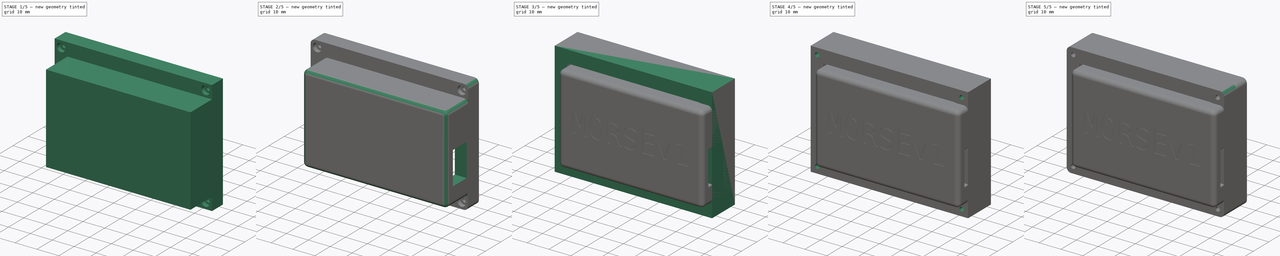
[diagram: build sequence overview — one tinted view per stage of 5, left to right]
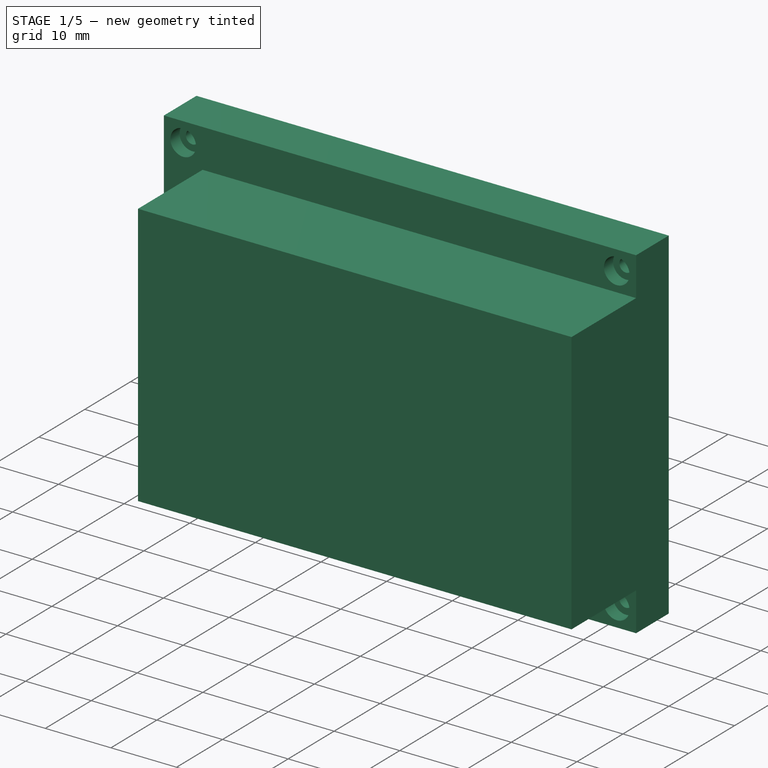
[diagram: stage 1 of 5 — iso view after this stage's code; geometry added in this stage tinted green]
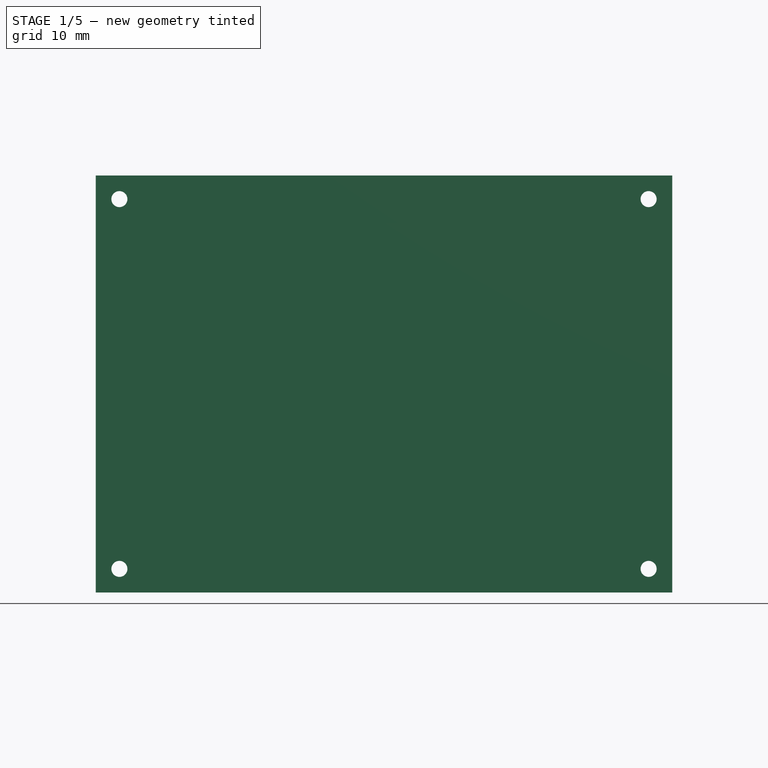
[diagram: stage 1 of 5 — front view after this stage's code; geometry added in this stage tinted green]
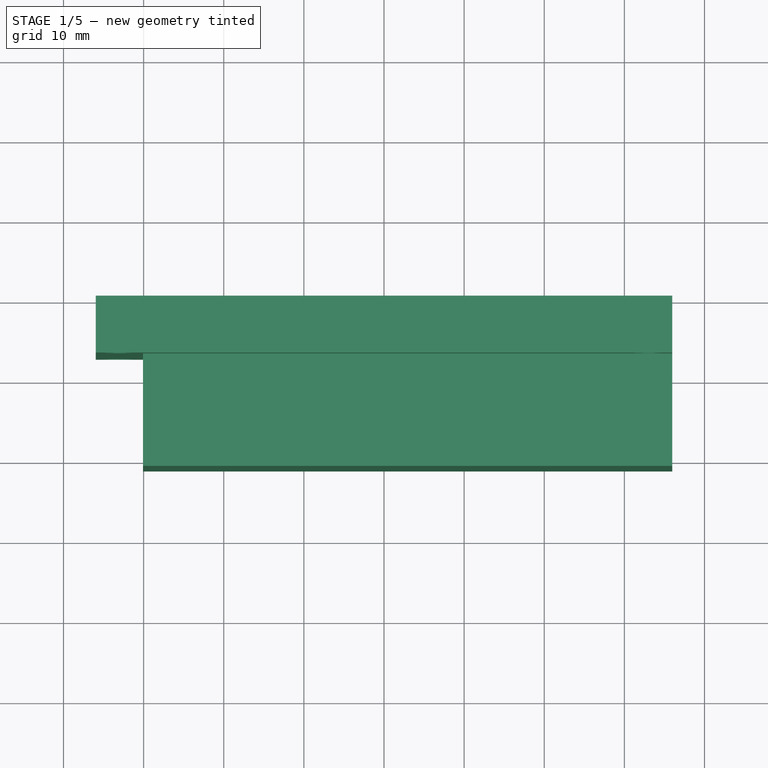
[diagram: stage 1 of 5 — top view after this stage's code; geometry added in this stage tinted green]
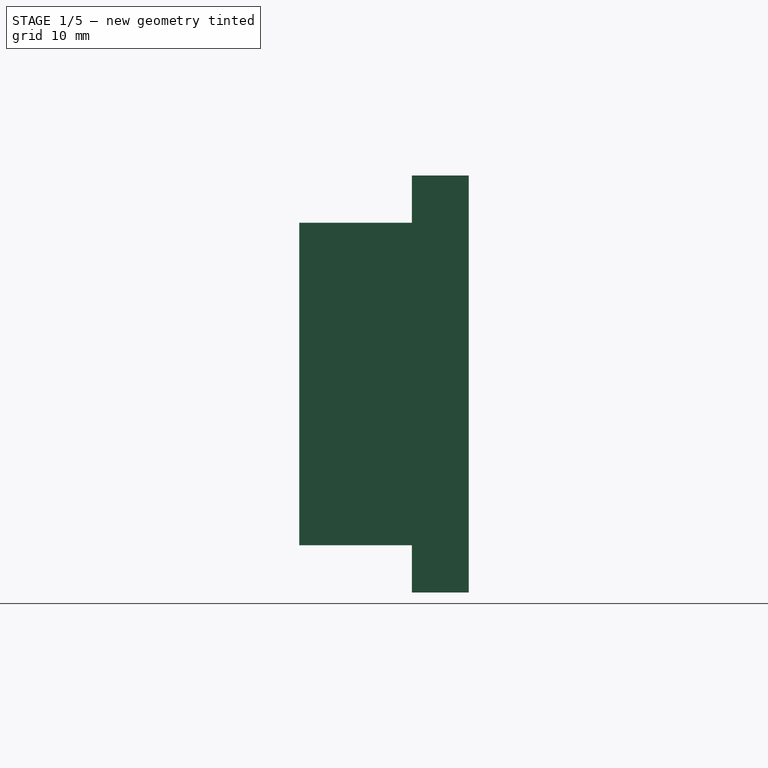
[diagram: stage 1 of 5 — right view after this stage's code; geometry added in this stage tinted green]
FCSTD DOCUMENT  (FreeCAD 0.19R24276 (Git))
Label: case
License: All rights reserved
LicenseURL: http://en.wikipedia.org/wiki/All_rights_reserved
objects: Sketcher::SketchObject×16, PartDesign::Pocket×15, PartDesign::Fillet×5, PartDesign::Pad×2, PartDesign::Body×2, Spreadsheet::Sheet×1, Part::Part2DObjectPython×1
note: 63 computed .brp shape members not serialized (recipe doc carries the construction recipe); baked Part::Feature solids carry a one-line shape summary decoded from their .brp

FEATURE [PartDesign::Body] Body001  label="Top"
  Group = -> [Sketch011,Pad001,Sketch012,Pocket009,Sketch013,Pocket010,Sketch014,Pocket,Sketch,Pocket011,Sketch015,Pocket012,Sketch016,Pocket013,Sketch017,Pocket014,Fillet,Fillet001,Fillet002]
  Origin = -> Origin001
  Placement = pos=(0,14.9,0) rot=(0,0,1;0rad)
  Tip = -> Fillet002
  expr: .Placement.Base.y = Spreadsheet.caseFullHeight
FEATURE [Sketcher::SketchObject] Sketch018
  FullyConstrained = true
  MapMode = 5
  Placement = pos=(0,0,0) rot=(1,0,0;1.5708rad)
  Support = -> [XZ_Plane]
  expr: Constraints[9] = Spreadsheet.caseFullLength
  expr: Constraints[8] = Spreadsheet.caseFullWidth
  sketch-geometry (4):
    g0: LineSegment StartX=-35.975 StartY=26.025 StartZ=0 EndX=35.975 EndY=26.025 EndZ=0
    g1: LineSegment StartX=35.975 StartY=26.025 StartZ=0 EndX=35.975 EndY=-26.025 EndZ=0
    g2: LineSegment StartX=35.975 StartY=-26.025 StartZ=0 EndX=-35.975 EndY=-26.025 EndZ=0
    g3: LineSegment StartX=-35.975 StartY=-26.025 StartZ=0 EndX=-35.975 EndY=26.025 EndZ=0
  constraints (10):
    c: Coincident(g0,g1)
    c: Coincident(g1,g2)
    c: Coincident(g2,g3)
    c: Coincident(g3,g0)
    c: Horizontal(g2)
    c: Vertical(g1)
    c: Symmetric(g0,g0,g-2)
    c: Symmetric(g2,g0,g-1)
    c: DistanceX(g0,g0) = 71.95
    c: DistanceY(g1,g1) = 52.05
FEATURE [PartDesign::Pad] Pad  label="Main Bottom Body"
  Direction = (1,1,1)
  Length = 21.15
  Length2 = 100
  Placement = pos=(0,0,0) rot=(1,0,0;1.5708rad)
  Profile = -> Sketch018
  Type = 0
  expr: Length = Spreadsheet.bottomCaseHeight
FEATURE [Sketcher::SketchObject] Sketch019
  ExternalGeometry = -> [Pad]
  FullyConstrained = true
  MapMode = 5
  Placement = pos=(0,-21.15,-4.7e-15) rot=(1,0,0;1.5708rad)
  Support = -> [Pad]
  expr: Constraints[28] = Spreadsheet.caseScrewPadding
  sketch-geometry (11):
    g0: LineSegment StartX=35.975 StartY=26.025 StartZ=0 EndX=35.975 EndY=20.125 EndZ=0
    g1: LineSegment StartX=35.975 StartY=20.125 StartZ=0 EndX=-30.075 EndY=20.125 EndZ=0
    g2: LineSegment StartX=-30.075 StartY=20.125 StartZ=0 EndX=-30.075 EndY=-20.125 EndZ=0
    g3: LineSegment StartX=-30.075 StartY=-20.125 StartZ=0 EndX=35.975 EndY=-20.125 EndZ=0
    g4: LineSegment StartX=35.975 StartY=-20.125 StartZ=0 EndX=35.975 EndY=-26.025 EndZ=0
    g5: LineSegment StartX=35.975 StartY=-26.025 StartZ=0 EndX=-35.975 EndY=-26.025 EndZ=0
    g6: LineSegment StartX=-35.975 StartY=-26.025 StartZ=0 EndX=-35.975 EndY=26.025 EndZ=0
    g7: LineSegment StartX=-35.975 StartY=26.025 StartZ=0 EndX=35.975 EndY=26.025 EndZ=0
    g8: LineSegment StartX=-30.075 StartY=20.125 StartZ=0 EndX=-30.075 EndY=26.025 EndZ=0
    g9: LineSegment StartX=-30.075 StartY=20.125 StartZ=0 EndX=-35.975 EndY=20.125 EndZ=0
    g10: LineSegment StartX=-30.075 StartY=-20.125 StartZ=0 EndX=-30.075 EndY=-26.025 EndZ=0
  constraints (29):
    c: Coincident(g0,g1)
    c: Coincident(g1,g2)
    c: Coincident(g2,g3)
    c: Coincident(g3,g4)
    c: Coincident(g4,g5)
    c: Coincident(g5,g6)
    c: Coincident(g6,g7)
    c: Coincident(g7,g0)
    c: Parallel(g-4,g0)
    c: Parallel(g0,g4)
    c: Parallel(g4,g2)
    c: Parallel(g7,g1)
    c: Parallel(g1,g3)
    c: Coincident(g6,g-6)
    c: Coincident(g5,g-6)
    c: Coincident(g4,g-5)
    c: Coincident(g0,g-4)
    c: Coincident(g8,g1)
    c: PointOnObject(g8,g7)
    c: Vertical(g8)
    c: Coincident(g9,g1)
    c: PointOnObject(g9,g6)
    c: Horizontal(g9)
    c: Coincident(g10,g2)
    c: PointOnObject(g10,g5)
    c: Vertical(g10)
    c: Equal(g9,g8)
    c: Equal(g8,g10)
    c: DistanceY(g8,g8) = 5.9
FEATURE [PartDesign::Pocket] Pocket015  label="Screws Cutout"
  BaseFeature = -> Pad
  Length = 14.05
  Length2 = 100
  Placement = pos=(0,0,0) rot=(1,0,0;1.5708rad)
  Profile = -> Sketch019
  Type = 0
  expr: Length = Spreadsheet.bottomCaseToScrewHead
FEATURE [Sketcher::SketchObject] Sketch020
  ExternalGeometry = -> [Pocket015]
  FullyConstrained = true
  MapMode = 5
  Placement = pos=(0,0,0) rot=(-1,0,0;1.5708rad)
  Support = -> [Pocket015]
  expr: Constraints[31] = Spreadsheet.caseScrewPadding / 2
  expr: Constraints[35] = Spreadsheet.screwHoleDiameter
  sketch-geometry (12):
    g0: Circle CenterX=33.025 CenterY=-23.075 CenterZ=0 NormalX=0 NormalY=0 NormalZ=1 AngleXU=0 Radius=1
    g1: Circle CenterX=-33.025 CenterY=-23.075 CenterZ=0 NormalX=0 NormalY=0 NormalZ=1 AngleXU=0 Radius=1
    g2: Circle CenterX=-33.025 CenterY=23.075 CenterZ=0 NormalX=0 NormalY=0 NormalZ=1 AngleXU=0 Radius=1
    g3: Circle CenterX=33.025 CenterY=23.075 CenterZ=0 NormalX=0 NormalY=0 NormalZ=1 AngleXU=0 Radius=1
    g4: LineSegment StartX=33.025 StartY=-23.075 StartZ=0 EndX=35.975 EndY=-23.075 EndZ=0
    g5: LineSegment StartX=33.025 StartY=-23.075 StartZ=0 EndX=33.025 EndY=-26.025 EndZ=0
    g6: LineSegment StartX=-33.025 StartY=-23.075 StartZ=0 EndX=-33.025 EndY=-26.025 EndZ=0
    g7: LineSegment StartX=-33.025 StartY=-23.075 StartZ=0 EndX=-35.975 EndY=-23.075 EndZ=0
    g8: LineSegment StartX=-33.025 StartY=23.075 StartZ=0 EndX=-35.975 EndY=23.075 EndZ=0
    g9: LineSegment StartX=-33.025 StartY=23.075 StartZ=0 EndX=-33.025 EndY=26.025 EndZ=0
    g10: LineSegment StartX=33.025 StartY=23.075 StartZ=0 EndX=33.025 EndY=26.025 EndZ=0
    g11: LineSegment StartX=33.025 StartY=23.075 StartZ=0 EndX=35.975 EndY=23.075 EndZ=0
  constraints (36):
    c: Coincident(g4,g0)
    c: PointOnObject(g4,g-6)
    c: Horizontal(g4)
    c: Coincident(g5,g0)
    c: PointOnObject(g5,g-3)
    c: Vertical(g5)
    c: Coincident(g6,g1)
    c: PointOnObject(g6,g-3)
    c: Vertical(g6)
    c: Coincident(g7,g1)
    c: PointOnObject(g7,g-4)
    c: Perpendicular(g-4,g7)
    c: Coincident(g8,g2)
    c: PointOnObject(g8,g-4)
    c: Horizontal(g8)
    c: Coincident(g9,g2)
    c: PointOnObject(g9,g-5)
    c: Vertical(g9)
    c: Coincident(g10,g3)
    c: PointOnObject(g10,g-5)
    c: Vertical(g10)
    c: Coincident(g11,g3)
    c: PointOnObject(g11,g-6)
    c: Horizontal(g11)
    c: Equal(g10,g11)
    c: Equal(g11,g4)
    c: Equal(g4,g5)
    c: Equal(g5,g7)
    c: Equal(g7,g6)
    c: Equal(g6,g8)
    c: Equal(g8,g9)
    c: DistanceX(g4,g4) = 2.95
    c: Equal(g0,g1)
    c: Equal(g1,g2)
    c: Equal(g2,g3)
    c: Diameter(g0) = 2
FEATURE [PartDesign::Pocket] Pocket016  label="Screw Holes Bottom"
  BaseFeature = -> Pocket015
  Length = 5.1
  Length2 = 100
  Placement = pos=(0,0,0) rot=(1,0,0;1.5708rad)
  Profile = -> Sketch020
  Type = 0
  expr: Length = Spreadsheet.screwHeight / 2
FEATURE [Sketcher::SketchObject] Sketch021
  ExternalGeometry = -> [Pocket016]
  FullyConstrained = true
  MapMode = 5
  Placement = pos=(0,-7.1,-1.7e-15) rot=(1,0,0;1.5708rad)
  Support = -> [Pocket016]
  expr: Constraints[34] = Spreadsheet.screwHeadDiameter
  expr: Constraints[35] = Spreadsheet.caseScrewPadding / 2
  sketch-geometry (12):
    g0: Circle CenterX=-33.025 CenterY=23.075 CenterZ=0 NormalX=0 NormalY=0 NormalZ=1 AngleXU=0 Radius=1.95
    g1: Circle CenterX=33.025 CenterY=23.075 CenterZ=0 NormalX=0 NormalY=0 NormalZ=1 AngleXU=0 Radius=1.95
    g2: Circle CenterX=33.025 CenterY=-23.075 CenterZ=0 NormalX=0 NormalY=0 NormalZ=1 AngleXU=0 Radius=1.95
    g3: Circle CenterX=-33.025 CenterY=-23.075 CenterZ=0 NormalX=0 NormalY=0 NormalZ=1 AngleXU=0 Radius=1.95
    g4: LineSegment StartX=-33.025 StartY=23.075 StartZ=0 EndX=-35.975 EndY=23.075 EndZ=0
    g5: LineSegment StartX=-33.025 StartY=23.075 StartZ=0 EndX=-33.025 EndY=26.025 EndZ=0
    g6: LineSegment StartX=33.025 StartY=23.075 StartZ=0 EndX=35.975 EndY=23.075 EndZ=0
    g7: LineSegment StartX=33.025 StartY=23.075 StartZ=0 EndX=33.025 EndY=26.025 EndZ=0
    g8: LineSegment StartX=33.025 StartY=-23.075 StartZ=0 EndX=35.975 EndY=-23.075 EndZ=0
    g9: LineSegment StartX=33.025 StartY=-23.075 StartZ=0 EndX=33.025 EndY=-26.025 EndZ=0
    g10: LineSegment StartX=-33.025 StartY=-23.075 StartZ=0 EndX=-33.025 EndY=-26.025 EndZ=0
    g11: LineSegment StartX=-33.025 StartY=-23.075 StartZ=0 EndX=-35.975 EndY=-23.075 EndZ=0
  constraints (36):
    c: Coincident(g4,g0)
    c: PointOnObject(g4,g-4)
    c: Horizontal(g4)
    c: Coincident(g5,g0)
    c: PointOnObject(g5,g-7)
    c: Vertical(g5)
    c: Coincident(g6,g1)
    c: PointOnObject(g6,g-6)
    c: Horizontal(g6)
    c: Coincident(g7,g1)
    c: PointOnObject(g7,g-7)
    c: Vertical(g7)
    c: Coincident(g8,g2)
    c: PointOnObject(g8,g-5)
    c: Horizontal(g8)
    c: Coincident(g9,g2)
    c: PointOnObject(g9,g-3)
    c: Vertical(g9)
    c: Coincident(g10,g3)
    c: PointOnObject(g10,g-3)
    c: Vertical(g10)
    c: Coincident(g11,g3)
    c: PointOnObject(g11,g-4)
    c: Horizontal(g11)
    c: Equal(g4,g5)
    c: Equal(g5,g6)
    c: Equal(g6,g7)
    c: Equal(g7,g8)
    c: Equal(g8,g9)
    c: Equal(g9,g11)
    c: Equal(g11,g10)
    c: Equal(g0,g1)
    c: Equal(g1,g2)
    c: Equal(g2,g3)
    c: Diameter(g0) = 3.9
    c: DistanceX(g4,g4) = 2.95
FEATURE [PartDesign::Pocket] Pocket017  label="Screw Head Holes"
  BaseFeature = -> Pocket016
  Length = 2
  Length2 = 100
  Placement = pos=(0,0,0) rot=(1,0,0;1.5708rad)
  Profile = -> Sketch021
  Type = 0
  expr: Length = Spreadsheet.screwHeadHeight
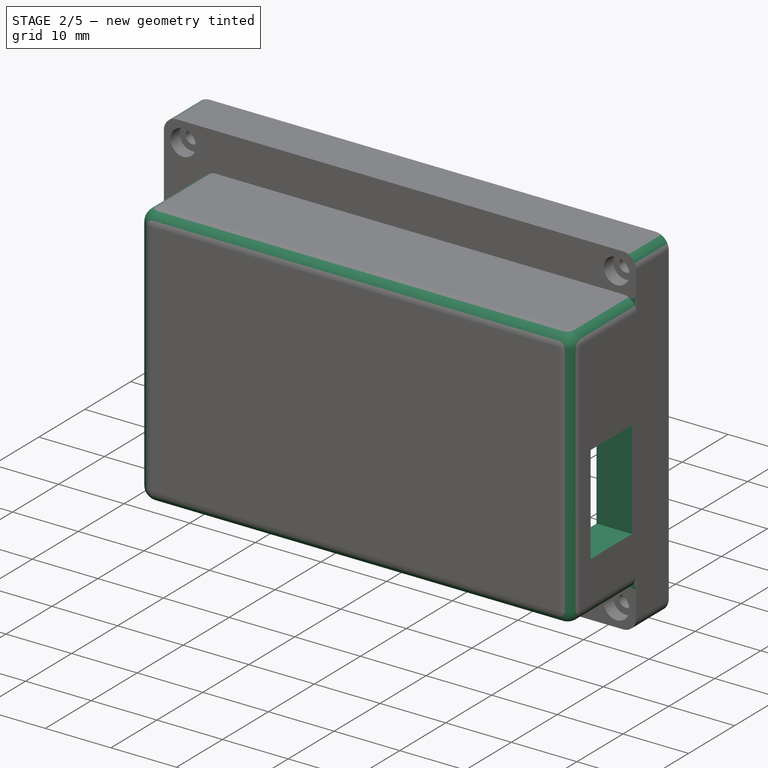
[diagram: stage 2 of 5 — iso view after this stage's code; geometry added in this stage tinted green]
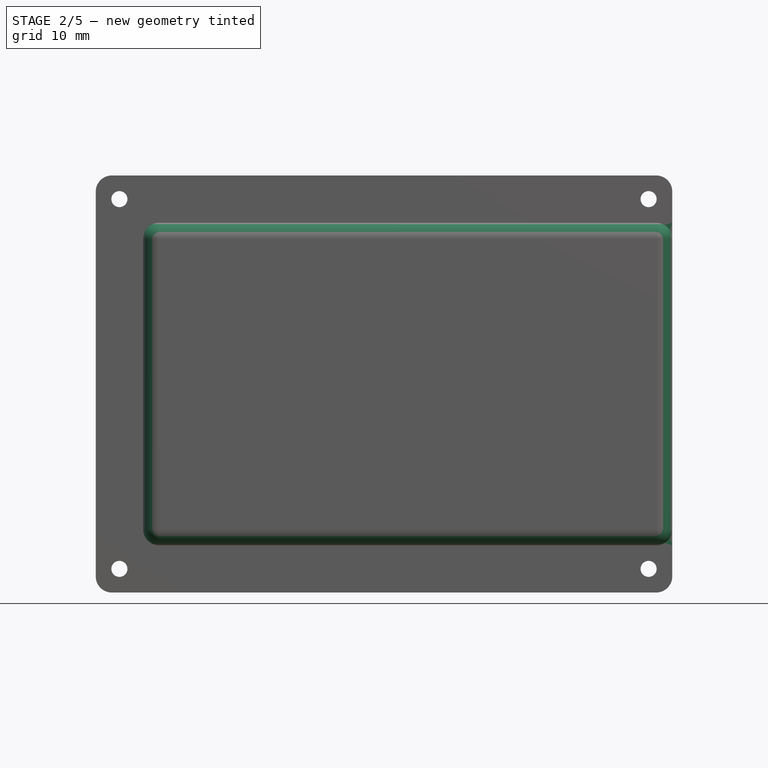
[diagram: stage 2 of 5 — front view after this stage's code; geometry added in this stage tinted green]
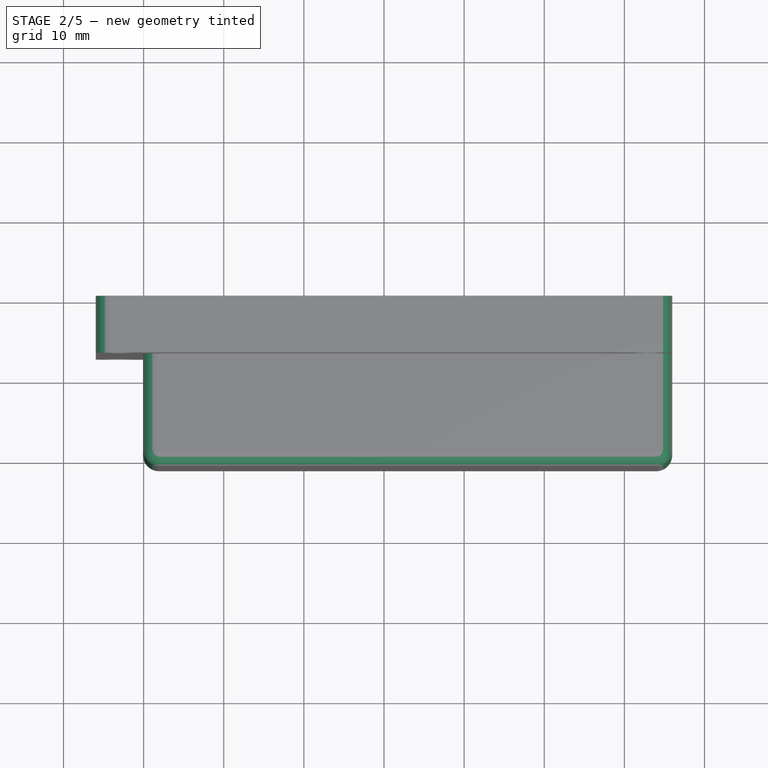
[diagram: stage 2 of 5 — top view after this stage's code; geometry added in this stage tinted green]
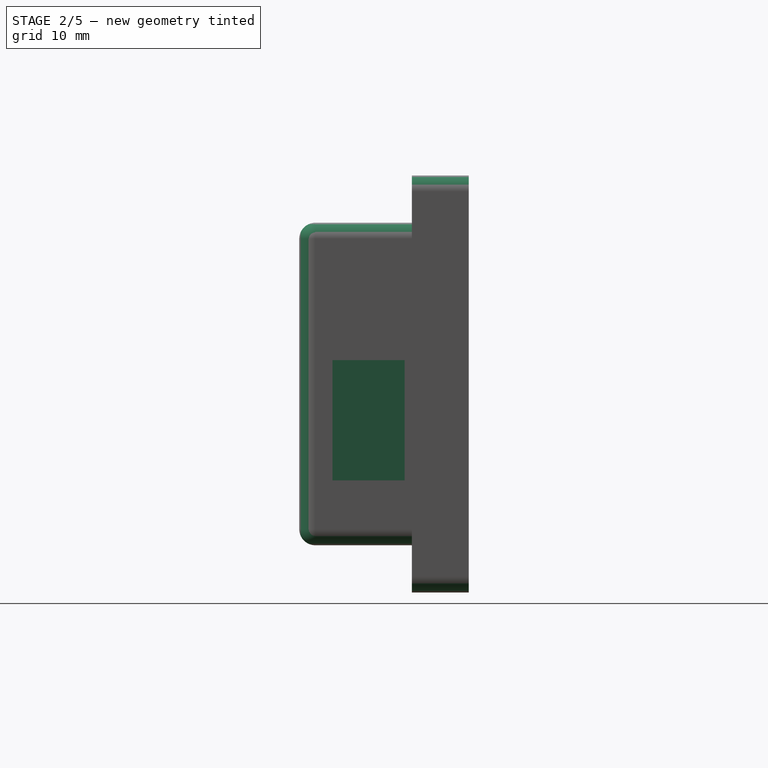
[diagram: stage 2 of 5 — right view after this stage's code; geometry added in this stage tinted green]
FEATURE [Sketcher::SketchObject] Sketch022
  ExternalGeometry = -> [Pocket017]
  FullyConstrained = true
  MapMode = 5
  Placement = pos=(35.975,0,0) rot=(0.707107,0,0.707107;3.14159rad)
  Support = -> [Pocket017]
  expr: Constraints[8] = Spreadsheet.bottomCaseToUSBHeight
  expr: Constraints[9] = Spreadsheet.bottomCaseToUSBEndZ
  expr: Constraints[10] = Spreadsheet.usbCutoutLength
  expr: Constraints[11] = Spreadsheet.usbCutoutHeight
  sketch-geometry (4):
    g0: LineSegment StartX=-12.025 StartY=17 StartZ=0 EndX=2.975 EndY=17 EndZ=0
    g1: LineSegment StartX=2.975 StartY=17 StartZ=0 EndX=2.975 EndY=8 EndZ=0
    g2: LineSegment StartX=2.975 StartY=8 StartZ=0 EndX=-12.025 EndY=8 EndZ=0
    g3: LineSegment StartX=-12.025 StartY=8 StartZ=0 EndX=-12.025 EndY=17 EndZ=0
  constraints (12):
    c: Coincident(g0,g1)
    c: Coincident(g1,g2)
    c: Coincident(g2,g3)
    c: Coincident(g3,g0)
    c: Horizontal(g0)
    c: Horizontal(g2)
    c: Vertical(g1)
    c: Vertical(g3)
    c: Distance(g2,g-3) = 8
    c: Distance(g1,g-4) = 29
    c: DistanceX(g0,g0) = 15
    c: Distance(g0,g-3) = 17
FEATURE [PartDesign::Pocket] Pocket018  label="USB Cutout"
  BaseFeature = -> Pocket017
  Length = 7
  Length2 = 100
  Placement = pos=(0,0,0) rot=(1,0,0;1.5708rad)
  Profile = -> Sketch022
  Type = 0
  expr: Length = Spreadsheet.usbCutoutDepth
FEATURE [Sketcher::SketchObject] Sketch023
  ExternalGeometry = -> [Pocket018]
  FullyConstrained = true
  MapMode = 5
  Placement = pos=(0,0,0) rot=(-1,0,0;1.5708rad)
  Support = -> [Pocket018]
  expr: Constraints[55] = Spreadsheet.caseThickness
  expr: Constraints[54] = Spreadsheet.caseScrewPadding
  sketch-geometry (20):
    g0: LineSegment StartX=-30.075 StartY=18.125 StartZ=0 EndX=-30.075 EndY=-18.125 EndZ=0
    g1: LineSegment StartX=-28.075 StartY=-20.125 StartZ=0 EndX=28.075 EndY=-20.125 EndZ=0
    g2: LineSegment StartX=30.075 StartY=-18.125 StartZ=0 EndX=30.075 EndY=18.125 EndZ=0
    g3: LineSegment StartX=28.075 StartY=20.125 StartZ=0 EndX=-28.075 EndY=20.125 EndZ=0
    g4: ArcOfCircle CenterX=-30.075 CenterY=-20.125 CenterZ=0 NormalX=0 NormalY=0 NormalZ=1 AngleXU=0 Radius=2 StartAngle=-9e-16 EndAngle=1.5708
    g5: ArcOfCircle CenterX=30.075 CenterY=-20.125 CenterZ=0 NormalX=0 NormalY=0 NormalZ=1 AngleXU=0 Radius=2 StartAngle=1.5708 EndAngle=3.14159
    g6: ArcOfCircle CenterX=-30.075 CenterY=20.125 CenterZ=0 NormalX=0 NormalY=0 NormalZ=1 AngleXU=0 Radius=2 StartAngle=4.71239 EndAngle=6.28319
    g7: ArcOfCircle CenterX=30.075 CenterY=20.125 CenterZ=0 NormalX=0 NormalY=0 NormalZ=1 AngleXU=0 Radius=2 StartAngle=3.14159 EndAngle=4.71239
    g8: LineSegment StartX=-28.075 StartY=20.125 StartZ=0 EndX=-30.075 EndY=20.125 EndZ=0
    g9: LineSegment StartX=-30.075 StartY=18.125 StartZ=0 EndX=-30.075 EndY=20.125 EndZ=0
    g10: LineSegment StartX=-30.075 StartY=-18.125 StartZ=0 EndX=-30.075 EndY=-20.125 EndZ=0
    g11: LineSegment StartX=-30.075 StartY=-20.125 StartZ=0 EndX=-28.075 EndY=-20.125 EndZ=0
    g12: LineSegment StartX=28.075 StartY=20.125 StartZ=0 EndX=30.075 EndY=20.125 EndZ=0
    g13: LineSegment StartX=30.075 StartY=18.125 StartZ=0 EndX=30.075 EndY=20.125 EndZ=0
    g14: LineSegment StartX=28.075 StartY=-20.125 StartZ=0 EndX=30.075 EndY=-20.125 EndZ=0
    g15: LineSegment StartX=30.075 StartY=-20.125 StartZ=0 EndX=30.075 EndY=-18.125 EndZ=0
    g16: LineSegment StartX=30.075 StartY=-20.125 StartZ=0 EndX=35.975 EndY=-20.125 EndZ=0
    g17: LineSegment StartX=-30.075 StartY=-20.125 StartZ=0 EndX=-30.075 EndY=-26.025 EndZ=0
    g18: LineSegment StartX=-30.075 StartY=20.125 StartZ=0 EndX=-35.975 EndY=20.125 EndZ=0
    g19: LineSegment StartX=30.075 StartY=20.125 StartZ=0 EndX=30.075 EndY=26.025 EndZ=0
  constraints (56):
    c: Coincident(g4,g0)
    c: Coincident(g4,g1)
    c: Coincident(g5,g1)
    c: Coincident(g5,g2)
    c: Coincident(g6,g0)
    c: Coincident(g6,g3)
    c: Coincident(g7,g3)
    c: Coincident(g7,g2)
    c: Coincident(g8,g3)
    c: Coincident(g8,g6)
    c: Coincident(g9,g0)
    c: Coincident(g9,g6)
    c: Coincident(g10,g0)
    c: Coincident(g10,g4)
    c: Coincident(g11,g4)
    c: Coincident(g11,g1)
    c: Coincident(g12,g3)
    c: Coincident(g12,g7)
    c: Coincident(g13,g2)
    c: Coincident(g13,g7)
    c: Coincident(g14,g1)
    c: Coincident(g14,g5)
    c: Coincident(g15,g2)
    c: Coincident(g15,g5)
    c: Parallel(g9,g0)
    c: Parallel(g8,g3)
    c: Parallel(g10,g0)
    c: Parallel(g11,g1)
    c: Parallel(g14,g1)
    c: Parallel(g15,g2)
    c: Parallel(g12,g3)
    c: Parallel(g13,g2)
    c: Parallel(g2,g-4)
    c: Parallel(g3,g-3)
    c: Parallel(g0,g-6)
    c: Parallel(g1,g-5)
    c: Equal(g15,g13)
    c: Equal(g12,g8)
    c: Equal(g9,g10)
    c: Coincident(g16,g5)
    c: PointOnObject(g16,g-4)
    c: Horizontal(g16)
    c: Coincident(g17,g4)
    c: PointOnObject(g17,g-5)
    c: Vertical(g17)
    c: Coincident(g18,g6)
    c: PointOnObject(g18,g-6)
    c: Horizontal(g18)
    c: Coincident(g19,g7)
    c: PointOnObject(g19,g-3)
    c: Vertical(g19)
    c: Equal(g16,g17)
    c: Equal(g17,g18)
    c: Equal(g18,g19)
    c: DistanceX(g16,g16) = 5.9
    c: DistanceX(g11,g11) = 2
FEATURE [PartDesign::Pocket] Pocket019  label="Initial Case Cutout"
  BaseFeature = -> Pocket018
  Length = 4.95
  Length2 = 100
  Placement = pos=(0,0,0) rot=(1,0,0;1.5708rad)
  Profile = -> Sketch023
  Type = 0
  expr: Length = Spreadsheet.pcbSupportCutout
FEATURE [Sketcher::SketchObject] Sketch024
  ExternalGeometry = -> [Pocket019]
  FullyConstrained = true
  MapMode = 5
  Placement = pos=(0,0,0) rot=(-1,0,0;1.5708rad)
  Support = -> [Pocket019]
  expr: Constraints[9] = Spreadsheet.mcuCutOut
  sketch-geometry (4):
    g0: LineSegment StartX=30.075 StartY=18.125 StartZ=0 EndX=30.575 EndY=18.125 EndZ=0
    g1: LineSegment StartX=30.575 StartY=18.125 StartZ=0 EndX=30.575 EndY=-18.125 EndZ=0
    g2: LineSegment StartX=30.575 StartY=-18.125 StartZ=0 EndX=30.075 EndY=-18.125 EndZ=0
    g3: LineSegment StartX=30.075 StartY=-18.125 StartZ=0 EndX=30.075 EndY=18.125 EndZ=0
  constraints (10):
    c: Coincident(g0,g1)
    c: Coincident(g1,g2)
    c: Coincident(g2,g3)
    c: Coincident(g3,g0)
    c: Horizontal(g0)
    c: Horizontal(g2)
    c: Vertical(g1)
    c: Coincident(g0,g-3)
    c: Coincident(g2,g-3)
    c: DistanceX(g0,g0) = 0.5
FEATURE [PartDesign::Pocket] Pocket020  label="MCU USB Cutout"
  BaseFeature = -> Pocket019
  Length = 19.15
  Length2 = 100
  Placement = pos=(0,0,0) rot=(1,0,0;1.5708rad)
  Profile = -> Sketch024
  Type = 0
  expr: Length = Spreadsheet.bottomCaseHeight - Spreadsheet.caseThickness
FEATURE [Sketcher::SketchObject] Sketch025
  ExternalGeometry = -> [Pocket020]
  FullyConstrained = true
  MapMode = 5
  Placement = pos=(0,-4.95,-1.1e-15) rot=(-1,0,0;1.5708rad)
  Support = -> [Pocket020]
  expr: Constraints[19] = Spreadsheet.caseThickness + Spreadsheet.tolerance
  sketch-geometry (7):
    g0: LineSegment StartX=30.075 StartY=-17.975 StartZ=0 EndX=-27.925 EndY=-17.975 EndZ=0
    g1: LineSegment StartX=-27.925 StartY=-17.975 StartZ=0 EndX=-27.925 EndY=17.975 EndZ=0
    g2: LineSegment StartX=-27.925 StartY=17.975 StartZ=0 EndX=30.075 EndY=17.975 EndZ=0
    g3: LineSegment StartX=30.075 StartY=17.975 StartZ=0 EndX=30.075 EndY=-17.975 EndZ=0
    g4: LineSegment StartX=30.075 StartY=-17.975 StartZ=0 EndX=30.075 EndY=-20.125 EndZ=0
    g5: LineSegment StartX=-27.925 StartY=-17.975 StartZ=0 EndX=-30.075 EndY=-17.975 EndZ=0
    g6: LineSegment StartX=-27.925 StartY=17.975 StartZ=0 EndX=-27.925 EndY=20.125 EndZ=0
  constraints (21):
    c: Coincident(g0,g1)
    c: Coincident(g1,g2)
    c: Coincident(g2,g3)
    c: Coincident(g3,g0)
    c: Horizontal(g0)
    c: Horizontal(g2)
    c: Vertical(g1)
    c: Vertical(g3)
    c: Coincident(g4,g0)
    c: PointOnObject(g4,g-3)
    c: Vertical(g4)
    c: Coincident(g5,g0)
    c: PointOnObject(g5,g-5)
    c: Horizontal(g5)
    c: Coincident(g6,g1)
    c: PointOnObject(g6,g-6)
    c: Vertical(g6)
    c: Equal(g4,g5)
    c: Equal(g5,g6)
    c: DistanceY(g4,g4) = 2.15
    c: PointOnObject(g2,g-4)
FEATURE [PartDesign::Pocket] Pocket021  label="MCU Cutout"
  BaseFeature = -> Pocket020
  Length = 14.35
  Length2 = 100
  Placement = pos=(0,0,0) rot=(1,0,0;1.5708rad)
  Profile = -> Sketch025
  Type = 0
  expr: Length = Spreadsheet.bottomCaseHeight - Spreadsheet.pcbSupportCutout - Spreadsheet.caseThickness + Spreadsheet.tolerance
FEATURE [PartDesign::Fillet] Fillet003  label="Radial Fillet"
  Base = -> Pocket021 [Edge41,Edge4,Edge2,Edge22,Edge26,Edge79,Edge78,Edge80,Edge76,Edge77,Edge25,Edge27]
  BaseFeature = -> Pocket021
  Placement = pos=(0,0,0) rot=(1,0,0;1.5708rad)
  Radius = 2
  SupportTransform = false
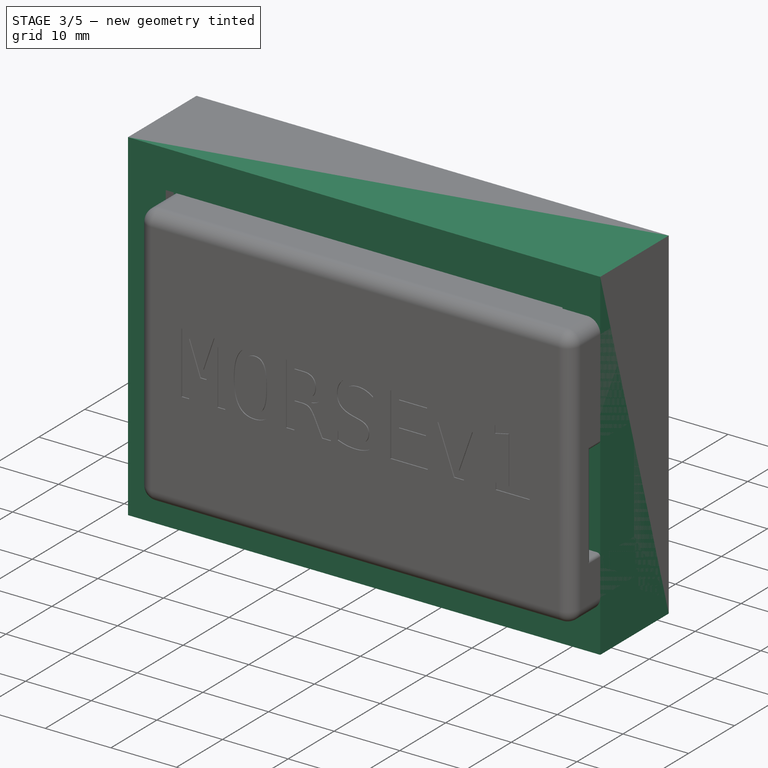
[diagram: stage 3 of 5 — iso view after this stage's code; geometry added in this stage tinted green]
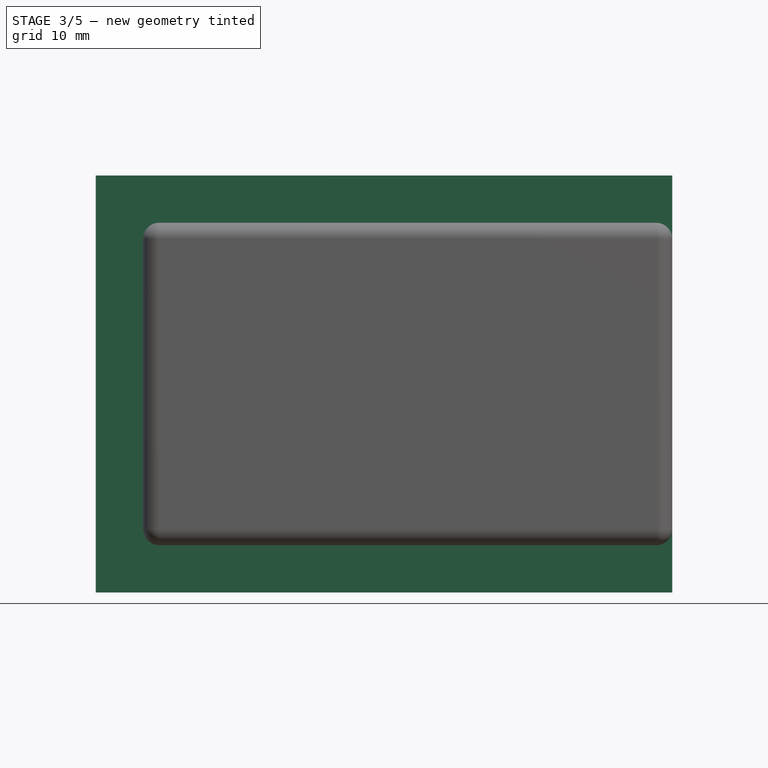
[diagram: stage 3 of 5 — front view after this stage's code; geometry added in this stage tinted green]
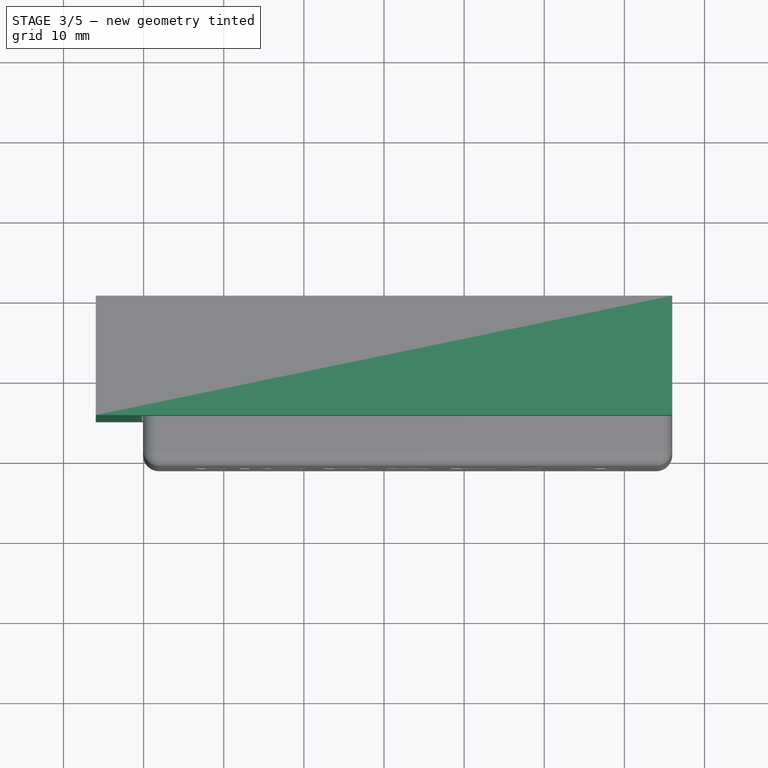
[diagram: stage 3 of 5 — top view after this stage's code; geometry added in this stage tinted green]
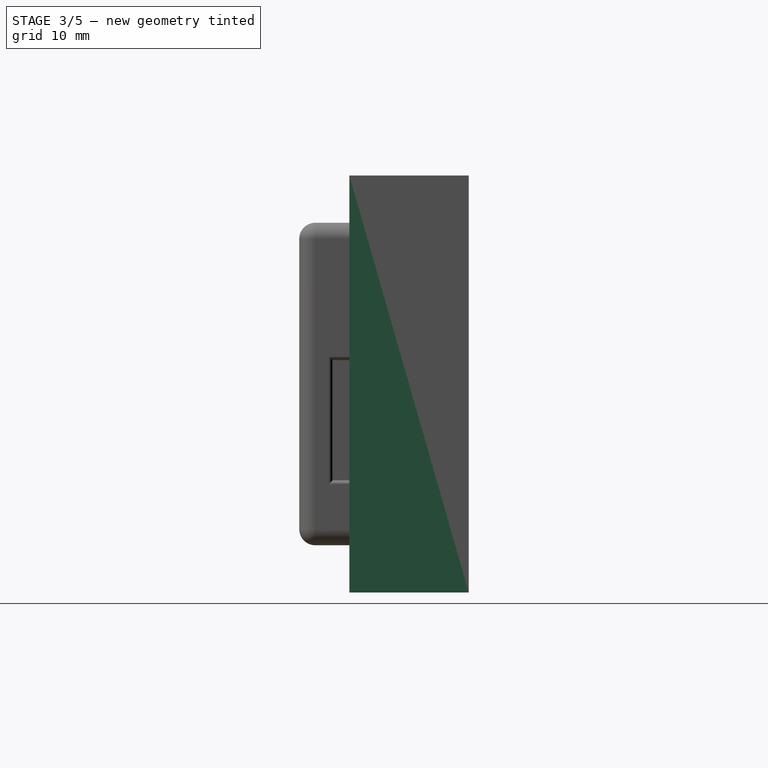
[diagram: stage 3 of 5 — right view after this stage's code; geometry added in this stage tinted green]
FEATURE [Spreadsheet::Sheet] Spreadsheet
  cells = A1=tolerance; B1(tolerance)=0.15; A2=padding; B2(padding)==screwHeadDiameter + caseThickness; A3=thickness; B3(caseThickness)=2; A4=full width; B4(full_width)=60.5; A5=full length; B5(full_length)=40.5; A6=full height; B6(full_height)=29.4; A7=Case full height; B7(top_height)==13 + pcbThickness; A12=Knob; A13=Board to knob Z; B13(boardToKnobZ)=2.7; A14=Board to knob X; B14(boardToKnobX)=0.5; A15=Board to knob Y; B15(boardToKnobY)=9.65; A16=Knob length; B16(knobLength)=18.9; A20=Board to screen X; B20(boardToScreenX)=2.2; A21=Board to screen Z; B21(boardToScreenZ)=6.85; A22=Board to screen end X; B22(boardToScreenEndX)=31; A36=Encoder; A37=Board to encoder X; B37(boardToEncoderX)=7.1; A38=Board to encoder Z; B38(boardToEncoderZ)=7.2; A39=Holes tolerance; B39(holesTolerance)==caseThickness; A41=Screws; A42=Head Diameter; B42(screwHeadDiameter)=3.9; A43=Full height; B43(screwFullHeight)=12.2; A44=Head height; B44(screwHeadHeight)=2; A45=Screw height; B45(screwHeight)=10.2; A46=Screw hole diameter; B46(screwHoleDiameter)==screwDiameter + tolerance - 0.05; C46=Works!; A47=Screw diameter; B47(screwDiameter)=1.9; A49=PCB height; B49(pcbThickness)=1.6; A50=PCB width; B50(pcbWidth)=60; A51=PCB length; B51(pcbLength)=40.1; A53=Board to encoder height; B53(boardToEncoderHeight)=11; A54=Encoder pocket height; B54(encoderPocketHeight)==boardToEncoderHeight + pcbThickness + tolerance; A55=Encoder pocket width; B55(encoderPocketWidth)=27.5; A56=Encoder to case X; B56(encoderToCaseX)=6.85; A57=Encoder to caze Z; B57(encoderToCaseZ)=7.55; A58=Encoder diameter; B58(encoderDiameter)=6.9; A59=Beeper to case X; B59(beeperToCaseX)=7.8; A60=Beeper to case Z; B60(beeperToCaseZ)=2.2; A61=Beeper diameter; B61(beeperDiameter)=11.85; A63=Case screw padding; B63(caseScrewPadding)==screwHeadDiameter + caseThickness; A64=Case full height; B64(caseFullHeight)==encoderPocketHeight + caseThickness + tolerance; A65=Case full width; B65(caseFullWidth)==pcbWidth + caseScrewPadding * 2 + tolerance; A66=Case full length; B66(caseFullLength)==pcbLength + caseScrewPadding * 2 + tolerance; A68=Display; A69=Display cutout height; B69(displayCutoutHeight)==6 + tolerance; A70=Case to screen X; B70(caseToScreenX)==2 - tolerance; A71=Case to screen Z; B71(caseToScreenZ)==6.7 - tolerance; A72=Screen Length; B72(screenLength)==16.9 + tolerance * 2; A73=Screen Width; B73(screenWidth)==24.8 + tolerance * 4; A74=Case to screen end X; B74(caseToScreenEndX)=27.5; A75=Case to screen end Z; B75(caseToScreenEndZ)=24.2; A78=Bottom Case MCU Pit; B78(bottomCaseMcuPit)=19; A79=Bottom Case Height; B79(bottomCaseHeight)==bottomCaseMcuPit + caseThickness + tolerance; A80=Bottom case to screw head; B80(bottomCaseToScrewHead)==bottomCaseHeight - (screwHeight / 2 + screwHeadHeight); A82=Bottom case to USB height; B82(bottomCaseToUSBHeight)=8; A83=Bottom case to USB End Z; B83(bottomCaseToUSBEndZ)=29; A84=USB Cutout Length; B84(usbCutoutLength)=15; A85=USB Cutout Height; B85(usbCutoutHeight)=17; A86=USB Cutout Depth; B86(usbCutoutDepth)=7; A88=Top case to MCU Top; B88(topCaseToMCUTop)=11.2; A89=MCU Height; B89(mcuHeight)=1.5; A90=Bottom Case to MCU Height; B90==topCaseToMCUTop - mcuHeight; A92=Case to USB MCU Padded; B92=6.6; A93=Padding thickness; B93=1.1; A94=Case outer border to MCU PCB; B94==B92 - B93; A95=Case inner border to MCU USB; B95==B94 - caseScrewPadding; A96=MCU Cutout; B96(mcuCutOut)=0.5; A98=PCB Support Cutout; B98(pcbSupportCutout)==screwHeadHeight + screwHeight / 2 - (caseThickness + tolerance)
FEATURE [Sketcher::SketchObject] Sketch011  label="Outer Shell (with padding)"
  FullyConstrained = true
  MapMode = 5
  Placement = pos=(0,0,0) rot=(1,0,0;1.5708rad)
  Support = -> [XZ_Plane001]
  expr: .Constraints.Length = Spreadsheet.caseFullLength
  expr: .Constraints.Width = Spreadsheet.caseFullWidth
  sketch-geometry (4):
    g0: LineSegment StartX=-35.975 StartY=26.025 StartZ=0 EndX=35.975 EndY=26.025 EndZ=0
    g1: LineSegment StartX=35.975 StartY=26.025 StartZ=0 EndX=35.975 EndY=-26.025 EndZ=0
    g2: LineSegment StartX=35.975 StartY=-26.025 StartZ=0 EndX=-35.975 EndY=-26.025 EndZ=0
    g3: LineSegment StartX=-35.975 StartY=-26.025 StartZ=0 EndX=-35.975 EndY=26.025 EndZ=0
  constraints (10):
    c: Coincident(g0,g1)
    c: Coincident(g1,g2)
    c: Coincident(g2,g3)
    c: Coincident(g3,g0)
    c: Equal(g0,g2)
    c: Distance(g0) = 71.95  'Width'
    c: Distance(g1) = 52.05  'Length'
    c: Symmetric(g0,g2,g-1)
    c: Symmetric(g0,g0,g-2)
    c: Parallel(g2,g-1)
FEATURE [PartDesign::Pad] Pad001  label="Full Case"
  Direction = (1,1,1)
  Length = 14.9
  Length2 = 100
  Placement = pos=(0,0,0) rot=(1,0,0;1.5708rad)
  Profile = -> Sketch011
  Type = 0
  expr: Length = Spreadsheet.caseFullHeight
FEATURE [Sketcher::SketchObject] Sketch012
  ExternalGeometry = -> [Pad001]
  FullyConstrained = true
  MapMode = 5
  Placement = pos=(0,-14.9,-3.3e-15) rot=(1,0,0;1.5708rad)
  Support = -> [Pad001]
  expr: Constraints[23] = Spreadsheet.caseScrewPadding - Spreadsheet.tolerance
  sketch-geometry (8):
    g0: LineSegment StartX=-30.225 StartY=20.275 StartZ=0 EndX=30.225 EndY=20.275 EndZ=0
    g1: LineSegment StartX=30.225 StartY=20.275 StartZ=0 EndX=30.225 EndY=-20.275 EndZ=0
    g2: LineSegment StartX=30.225 StartY=-20.275 StartZ=0 EndX=-30.225 EndY=-20.275 EndZ=0
    g3: LineSegment StartX=-30.225 StartY=-20.275 StartZ=0 EndX=-30.225 EndY=20.275 EndZ=0
    g4: LineSegment StartX=-30.225 StartY=20.275 StartZ=0 EndX=-35.975 EndY=20.275 EndZ=0
    g5: LineSegment StartX=30.225 StartY=20.275 StartZ=0 EndX=30.225 EndY=26.025 EndZ=0
    g6: LineSegment StartX=30.225 StartY=-20.275 StartZ=0 EndX=35.975 EndY=-20.275 EndZ=0
    g7: LineSegment StartX=-30.225 StartY=-20.275 StartZ=0 EndX=-30.225 EndY=-26.025 EndZ=0
  constraints (24):
    c: Coincident(g0,g1)
    c: Coincident(g1,g2)
    c: Coincident(g2,g3)
    c: Coincident(g3,g0)
    c: Horizontal(g0)
    c: Horizontal(g2)
    c: Vertical(g1)
    c: Vertical(g3)
    c: Coincident(g4,g0)
    c: PointOnObject(g4,g-3)
    c: Coincident(g5,g0)
    c: PointOnObject(g5,g-4)
    c: Coincident(g6,g1)
    c: PointOnObject(g6,g-5)
    c: Coincident(g7,g2)
    c: PointOnObject(g7,g-6)
    c: Perpendicular(g-3,g4)
    c: Perpendicular(g-4,g5)
    c: Perpendicular(g-5,g6)
    c: Perpendicular(g-6,g7)
    c: Equal(g4,g5)
    c: Equal(g6,g7)
    c: Equal(g4,g7)
    c: DistanceX(g4,g4) = 5.75
FEATURE [PartDesign::Pocket] Pocket009  label="PCB Pocket"
  BaseFeature = -> Pad001
  Length = 1.75
  Length2 = 100
  Placement = pos=(0,0,0) rot=(1,0,0;1.5708rad)
  Profile = -> Sketch012
  Type = 0
  expr: Length = Spreadsheet.pcbThickness + Spreadsheet.tolerance
FEATURE [PartDesign::Fillet] Fillet004  label="Inner Fillet"
  Base = -> Fillet003 [Edge34,Edge55,Edge54,Edge57,Edge56,Edge81,Edge82,Edge83,Edge80]
  BaseFeature = -> Fillet003
  Placement = pos=(0,0,0) rot=(1,0,0;1.5708rad)
  Radius = 0.5
  SupportTransform = false
FEATURE [Part::Part2DObjectPython] ShapeString  # Draft 2D object (typed FeaturePython)
  FontFile = <userpath>/fonts/Hack/Hack-Regular.ttf
  Placement = pos=(-24,-21.15,-4) rot=(1,0,0;1.5708rad)
  Size = 10
  String = MORSEv1
  Tracking = 0
  expr: .Placement.Base.y = -Spreadsheet.bottomCaseHeight
FEATURE [PartDesign::Pocket] Pocket022
  BaseFeature = -> Fillet004
  Length = 0.15
  Length2 = 100
  Placement = pos=(0,0,0) rot=(1,0,0;1.5708rad)
  Profile = -> ShapeString
  Type = 0
  expr: Length = Spreadsheet.tolerance
FEATURE [PartDesign::Body] Body  label="Bottom"
  Group = -> [Sketch018,Pad,Sketch019,Pocket015,Sketch020,Pocket016,Sketch021,Pocket017,Sketch022,Pocket018,Sketch023,Pocket019,Sketch024,Pocket020,Sketch025,Pocket021,Fillet003,Fillet004,ShapeString,Pocket022]
  Origin = -> Origin
  Tip = -> Pocket022
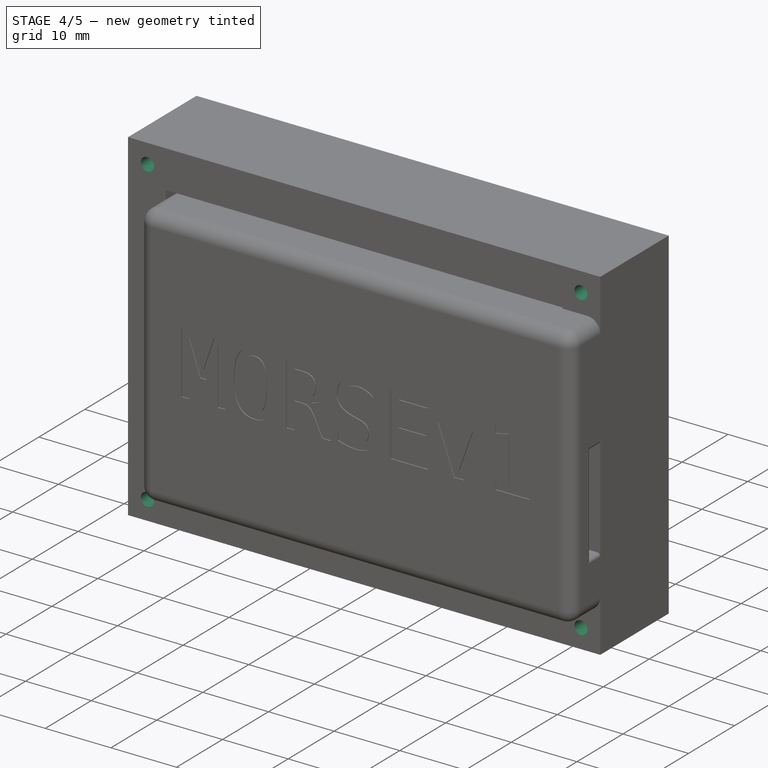
[diagram: stage 4 of 5 — iso view after this stage's code; geometry added in this stage tinted green]
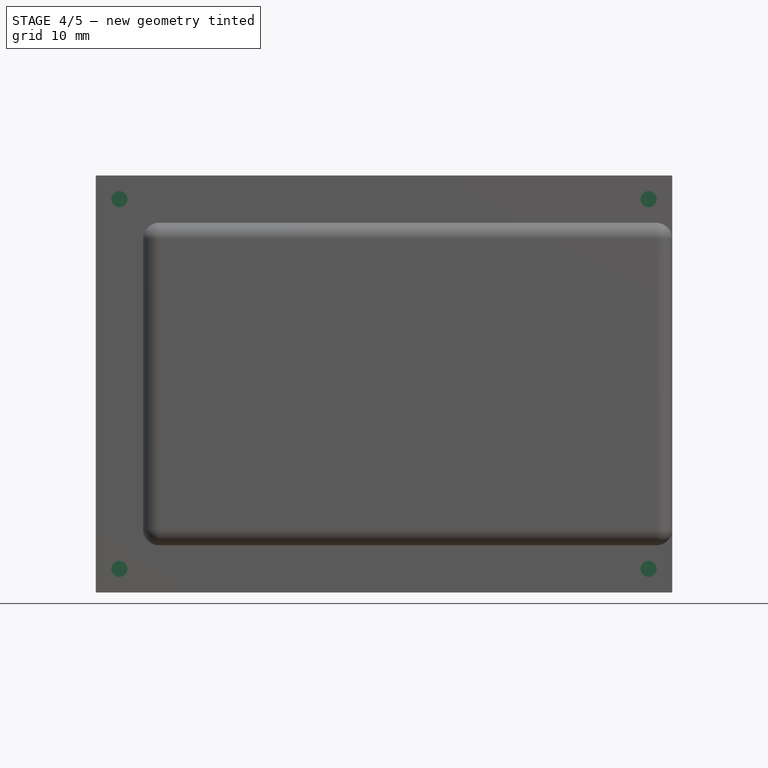
[diagram: stage 4 of 5 — front view after this stage's code; geometry added in this stage tinted green]
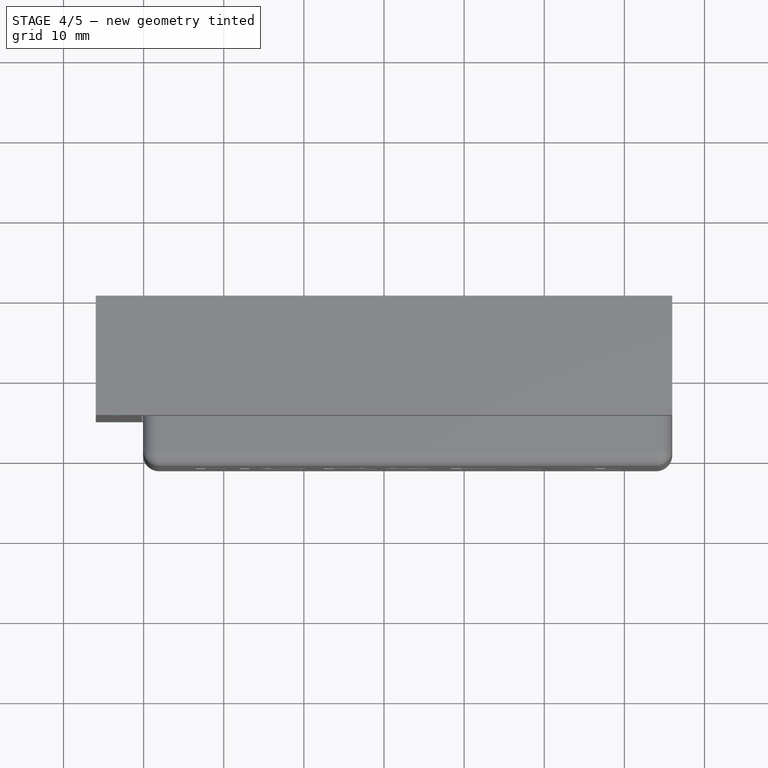
[diagram: stage 4 of 5 — top view after this stage's code; geometry added in this stage tinted green]
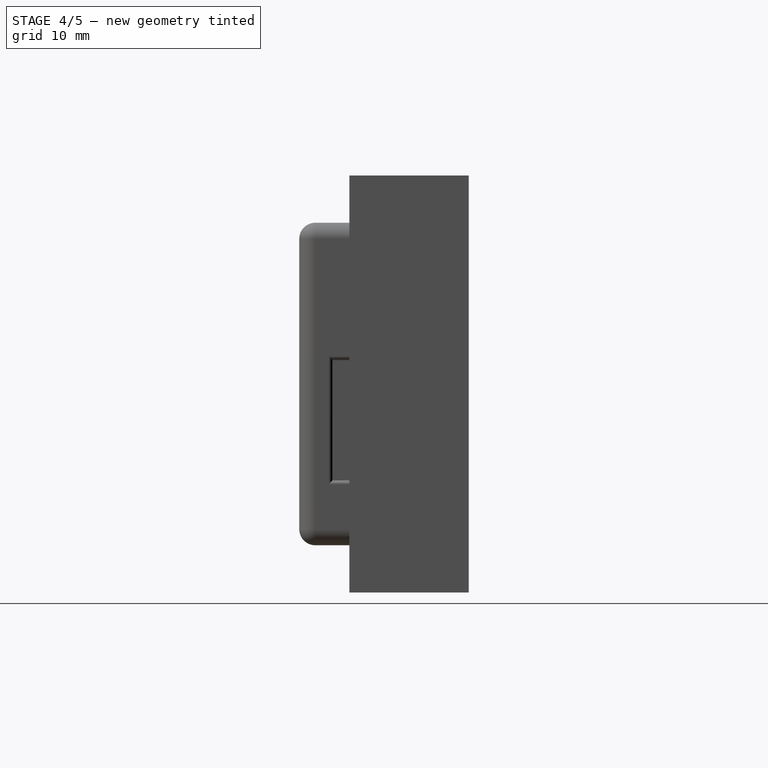
[diagram: stage 4 of 5 — right view after this stage's code; geometry added in this stage tinted green]
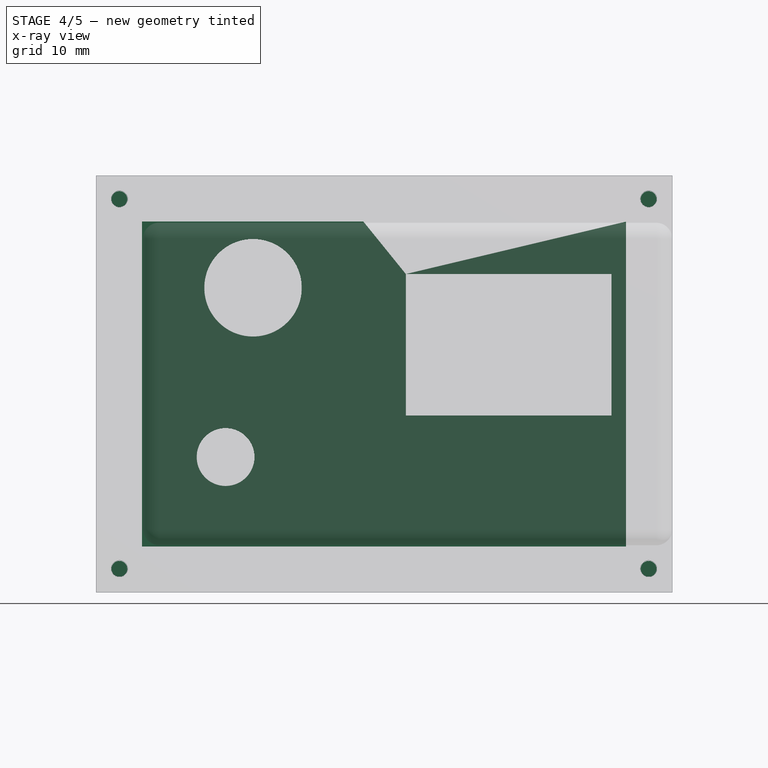
[diagram: stage 4 of 5 — x-ray composite at the front view; earlier geometry ghosted, this stage's added geometry solid]
FEATURE [Sketcher::SketchObject] Sketch013
  ExternalGeometry = -> [Pocket009]
  FullyConstrained = true
  MapMode = 5
  Placement = pos=(0,-14.9,-3.3e-15) rot=(1,0,0;1.5708rad)
  Support = -> [Pocket009]
  expr: Constraints[18] = Spreadsheet.caseScrewPadding / 2
  expr: Constraints[19] = Spreadsheet.screwHoleDiameter
  sketch-geometry (12):
    g0: LineSegment StartX=-30.225 StartY=20.275 StartZ=0 EndX=-35.975 EndY=26.025 EndZ=0
    g1: LineSegment StartX=-35.975 StartY=-26.025 StartZ=0 EndX=-30.225 EndY=-20.275 EndZ=0
    g2: LineSegment StartX=30.225 StartY=-20.275 StartZ=0 EndX=35.975 EndY=-26.025 EndZ=0
    g3: LineSegment StartX=30.225 StartY=20.275 StartZ=0 EndX=35.975 EndY=26.025 EndZ=0
    g4: Circle CenterX=-33.025 CenterY=23.075 CenterZ=0 NormalX=0 NormalY=0 NormalZ=1 AngleXU=0 Radius=1
    g5: Circle CenterX=33.025 CenterY=23.075 CenterZ=0 NormalX=0 NormalY=0 NormalZ=1 AngleXU=0 Radius=1
    g6: Circle CenterX=33.025 CenterY=-23.075 CenterZ=0 NormalX=0 NormalY=0 NormalZ=1 AngleXU=0 Radius=1
    g7: Circle CenterX=-33.025 CenterY=-23.075 CenterZ=0 NormalX=0 NormalY=0 NormalZ=1 AngleXU=0 Radius=1
    g8: LineSegment StartX=-33.025 StartY=23.075 StartZ=0 EndX=-35.975 EndY=23.075 EndZ=0
    g9: LineSegment StartX=33.025 StartY=23.075 StartZ=0 EndX=35.975 EndY=23.075 EndZ=0
    g10: LineSegment StartX=33.025 StartY=-23.075 StartZ=0 EndX=35.975 EndY=-23.075 EndZ=0
    g11: LineSegment StartX=-33.025 StartY=-23.075 StartZ=0 EndX=-35.975 EndY=-23.075 EndZ=0
  constraints (32):
    c: Coincident(g0,g-4)
    c: Coincident(g0,g-10)
    c: Coincident(g1,g-9)
    c: Coincident(g1,g-6)
    c: Coincident(g2,g-6)
    c: Coincident(g2,g-8)
    c: Coincident(g3,g-5)
    c: Coincident(g3,g-10)
    c: PointOnObject(g4,g0)
    c: PointOnObject(g5,g3)
    c: PointOnObject(g6,g2)
    c: PointOnObject(g7,g1)
    c: Equal(g4,g5)
    c: Equal(g5,g6)
    c: Equal(g6,g7)
    c: Coincident(g8,g4)
    c: PointOnObject(g8,g-9)
    c: Perpendicular(g-9,g8)
    c: DistanceX(g8,g8) = 2.95
    c: Diameter(g4) = 2
    c: Coincident(g9,g5)
    c: PointOnObject(g9,g-7)
    c: Coincident(g10,g6)
    c: PointOnObject(g10,g-7)
    c: Coincident(g11,g7)
    c: PointOnObject(g11,g-9)
    c: Perpendicular(g-9,g11)
    c: Perpendicular(g-7,g10)
    c: Perpendicular(g-7,g9)
    c: Equal(g11,g10)
    c: Equal(g10,g9)
    c: Equal(g9,g8)
FEATURE [PartDesign::Pocket] Pocket010  label="Screw Holes"
  BaseFeature = -> Pocket009
  Length = 5.1
  Length2 = 100
  Placement = pos=(0,0,0) rot=(1,0,0;1.5708rad)
  Profile = -> Sketch013
  Type = 0
  expr: Length = Spreadsheet.screwHeight / 2
FEATURE [Sketcher::SketchObject] Sketch014
  ExternalGeometry = -> [Pocket010]
  FullyConstrained = true
  MapMode = 5
  Placement = pos=(0,4.5e-15,-20.275) rot=(0,0,1;3.14159rad)
  Support = -> [Pocket010]
  expr: Constraints[6] = Spreadsheet.encoderPocketHeight + Spreadsheet.tolerance
  expr: .Constraints.Width = Spreadsheet.encoderPocketWidth + Spreadsheet.tolerance
  sketch-geometry (5):
    g0: LineSegment StartX=30.225 StartY=13.15 StartZ=0 EndX=2.575 EndY=13.15 EndZ=0
    g1: LineSegment StartX=2.575 StartY=13.15 StartZ=0 EndX=2.575 EndY=2 EndZ=0
    g2: LineSegment StartX=30.225 StartY=2 StartZ=0 EndX=2.575 EndY=2 EndZ=0
    g3: LineSegment StartX=30.225 StartY=14.9 StartZ=0 EndX=30.225 EndY=2 EndZ=0
    g4: LineSegment StartX=30.225 StartY=13.15 StartZ=0 EndX=30.225 EndY=2 EndZ=0
  constraints (13):
    c: Coincident(g0,g-4)
    c: PointOnObject(g0,g-4)
    c: Coincident(g1,g0)
    c: Coincident(g2,g1)
    c: Parallel(g2,g0)
    c: DistanceX(g2,g2) = 27.65  'Width'
    c: DistanceY(g3,g3) = 12.9
    c: Coincident(g2,g3)
    c: PointOnObject(g0,g3)
    c: Coincident(g3,g-3)
    c: Perpendicular(g2,g1)
    c: Coincident(g4,g0)
    c: Coincident(g4,g2)
FEATURE [PartDesign::Pocket] Pocket  label="Encoder Pocket"
  BaseFeature = -> Pocket010
  Length = 0
  Length2 = 100
  Placement = pos=(0,0,0) rot=(1,0,0;1.5708rad)
  Profile = -> Sketch014
  Reversed = true
  Type = 3
  UpToFace = -> Pocket010 [Face10]
FEATURE [Sketcher::SketchObject] Sketch
  ExternalGeometry = -> [Pocket]
  FullyConstrained = true
  MapMode = 5
  Placement = pos=(0,-2,-4e-16) rot=(1,0,0;1.5708rad)
  Support = -> [Pocket]
  expr: Constraints[29] = Spreadsheet.beeperToCaseZ
  expr: Constraints[28] = Spreadsheet.beeperToCaseX
  expr: Constraints[10] = Spreadsheet.encoderToCaseX
  expr: Constraints[1] = Spreadsheet.beeperDiameter + Spreadsheet.tolerance * 2
  expr: Constraints[9] = Spreadsheet.encoderToCaseZ
  expr: Constraints[0] = Spreadsheet.encoderDiameter + Spreadsheet.tolerance * 2
  sketch-geometry (10):
    g0: Circle CenterX=-19.775 CenterY=-9.125 CenterZ=0 NormalX=0 NormalY=0 NormalZ=1 AngleXU=0 Radius=3.6
    g1: Circle CenterX=-16.35 CenterY=12 CenterZ=0 NormalX=0 NormalY=0 NormalZ=1 AngleXU=0 Radius=6.075
    g2: LineSegment StartX=-19.775 StartY=-12.725 StartZ=0 EndX=-19.775 EndY=-20.275 EndZ=0
    g3: LineSegment StartX=-23.375 StartY=-9.125 StartZ=0 EndX=-30.225 EndY=-9.125 EndZ=0
    g4: LineSegment StartX=-23.375 StartY=-9.125 StartZ=0 EndX=-19.775 EndY=-9.125 EndZ=0
    g5: LineSegment StartX=-19.775 StartY=-12.725 StartZ=0 EndX=-19.775 EndY=-9.125 EndZ=0
    g6: LineSegment StartX=-22.425 StartY=12 StartZ=0 EndX=-30.225 EndY=12 EndZ=0
    g7: LineSegment StartX=-16.35 StartY=18.075 StartZ=0 EndX=-16.35 EndY=20.275 EndZ=0
    g8: LineSegment StartX=-22.425 StartY=12 StartZ=0 EndX=-16.35 EndY=12 EndZ=0
    g9: LineSegment StartX=-16.35 StartY=12 StartZ=0 EndX=-16.35 EndY=18.075 EndZ=0
  constraints (30):
    c: Diameter(g0) = 7.2
    c: Diameter(g1) = 12.15
    c: PointOnObject(g2,g0)
    c: PointOnObject(g2,g-5)
    c: PointOnObject(g3,g-3)
    c: Coincident(g4,g3)
    c: Coincident(g4,g0)
    c: Coincident(g5,g2)
    c: Coincident(g5,g0)
    c: DistanceY(g2,g2) = 7.55
    c: DistanceX(g3,g3) = 6.85
    c: PointOnObject(g6,g1)
    c: PointOnObject(g6,g-3)
    c: PointOnObject(g7,g1)
    c: PointOnObject(g7,g-4)
    c: Coincident(g8,g6)
    c: Coincident(g8,g1)
    c: Coincident(g9,g1)
    c: Coincident(g9,g7)
    c: Parallel(g5,g2)
    c: Parallel(g3,g4)
    c: Perpendicular(g2,g-5)
    c: PointOnObject(g3,g0)
    c: Perpendicular(g-3,g3)
    c: Parallel(g6,g8)
    c: Parallel(g9,g7)
    c: Perpendicular(g-3,g6)
    c: Perpendicular(g-4,g7)
    c: DistanceX(g6,g6) = 7.8
    c: DistanceY(g7,g7) = 2.2
FEATURE [PartDesign::Pocket] Pocket011  label="Encoder Holes"
  BaseFeature = -> Pocket
  Length = 5
  Length2 = 100
  Placement = pos=(0,0,0) rot=(1,0,0;1.5708rad)
  Profile = -> Sketch
  Type = 1
FEATURE [Sketcher::SketchObject] Sketch015
  ExternalGeometry = -> [Pocket011]
  FullyConstrained = true
  MapMode = 5
  Placement = pos=(0,-13.15,-3.5e-15) rot=(1,0,0;1.5708rad)
  Support = -> [Pocket011]
  expr: Constraints[20] = Spreadsheet.caseToScreenZ
  expr: Constraints[21] = Spreadsheet.caseToScreenX
  expr: Constraints[26] = Spreadsheet.caseToScreenEndX
  expr: Constraints[31] = Spreadsheet.caseToScreenEndZ
  sketch-geometry (11):
    g0: LineSegment StartX=28.375 StartY=13.725 StartZ=0 EndX=2.725 EndY=13.725 EndZ=0
    g1: LineSegment StartX=2.725 StartY=13.725 StartZ=0 EndX=2.725 EndY=-3.925 EndZ=0
    g2: LineSegment StartX=2.725 StartY=-3.925 StartZ=0 EndX=28.375 EndY=-3.925 EndZ=0
    g3: LineSegment StartX=28.375 StartY=-3.925 StartZ=0 EndX=28.375 EndY=13.725 EndZ=0
    g4: LineSegment StartX=2.725 StartY=13.725 StartZ=0 EndX=2.725 EndY=20.275 EndZ=0
    g5: LineSegment StartX=28.375 StartY=13.725 StartZ=0 EndX=28.375 EndY=20.275 EndZ=0
    g6: LineSegment StartX=28.375 StartY=13.725 StartZ=0 EndX=30.225 EndY=13.725 EndZ=0
    g7: LineSegment StartX=28.375 StartY=-3.925 StartZ=0 EndX=30.225 EndY=-3.925 EndZ=0
    g8: LineSegment StartX=30.225 StartY=20.275 StartZ=0 EndX=2.725 EndY=20.275 EndZ=0
    g9: LineSegment StartX=2.725 StartY=20.275 StartZ=0 EndX=2.725 EndY=13.725 EndZ=0
    g10: LineSegment StartX=30.225 StartY=20.275 StartZ=0 EndX=30.225 EndY=-3.925 EndZ=0
  constraints (34):
    c: Coincident(g0,g1)
    c: Coincident(g1,g2)
    c: Coincident(g2,g3)
    c: Coincident(g3,g0)
    c: Coincident(g4,g0)
    c: PointOnObject(g4,g-3)
    c: Coincident(g5,g0)
    c: PointOnObject(g5,g-3)
    c: Coincident(g6,g0)
    c: PointOnObject(g6,g-4)
    c: Coincident(g7,g2)
    c: PointOnObject(g7,g-4)
    c: Equal(g4,g5)
    c: Equal(g7,g6)
    c: Perpendicular(g-3,g5)
    c: Perpendicular(g-3,g4)
    c: Perpendicular(g-4,g7)
    c: Perpendicular(g-4,g6)
    c: Parallel(g1,g3)
    c: Parallel(g2,g0)
    c: DistanceY(g5,g5) = 6.55
    c: DistanceX(g7,g7) = 1.85
    c: PointOnObject(g8,g-4)
    c: Perpendicular(g-4,g8)
    c: Coincident(g9,g8)
    c: Perpendicular(g0,g9)
    c: DistanceX(g8,g8) = 27.5
    c: Coincident(g0,g9)
    c: PointOnObject(g10,g-3)
    c: Parallel(g10,g3)
    c: PointOnObject(g10,g7)
    c: DistanceY(g10,g10) = 24.2
    c: PointOnObject(g8,g-3)
    c: PointOnObject(g10,g-4)
FEATURE [PartDesign::Pocket] Pocket012  label="Screen Hole"
  BaseFeature = -> Pocket011
  Length = 5
  Length2 = 100
  Placement = pos=(0,0,0) rot=(1,0,0;1.5708rad)
  Profile = -> Sketch015
  Type = 1
FEATURE [Sketcher::SketchObject] Sketch016
  ExternalGeometry = -> [Pocket012]
  FullyConstrained = true
  MapMode = 5
  Placement = pos=(0,-4.5e-15,20.275) rot=(1,0,0;3.14159rad)
  Support = -> [Pocket012]
  expr: Constraints[2] = Spreadsheet.displayCutoutHeight
  sketch-geometry (4):
    g0: LineSegment StartX=30.225 StartY=13.15 StartZ=0 EndX=30.225 EndY=7 EndZ=0
    g1: LineSegment StartX=-2.575 StartY=13.15 StartZ=0 EndX=-2.575 EndY=7 EndZ=0
    g2: LineSegment StartX=-2.575 StartY=7 StartZ=0 EndX=30.225 EndY=7 EndZ=0
    g3: LineSegment StartX=-2.575 StartY=13.15 StartZ=0 EndX=30.225 EndY=13.15 EndZ=0
  constraints (10):
    c: Parallel(g0,g-3)
    c: Coincident(g0,g-4)
    c: DistanceY(g0,g0) = 6.15
    c: Parallel(g1,g0)
    c: Equal(g1,g0)
    c: Coincident(g2,g1)
    c: Coincident(g2,g0)
    c: Coincident(g3,g1)
    c: Coincident(g3,g0)
    c: Coincident(g1,g-4)
FEATURE [PartDesign::Pocket] Pocket013  label="Screen Pocket"
  BaseFeature = -> Pocket012
  Length = 0
  Length2 = 100
  Placement = pos=(0,0,0) rot=(1,0,0;1.5708rad)
  Profile = -> Sketch016
  Reversed = true
  Type = 3
  UpToFace = -> Pocket012 [Face19]
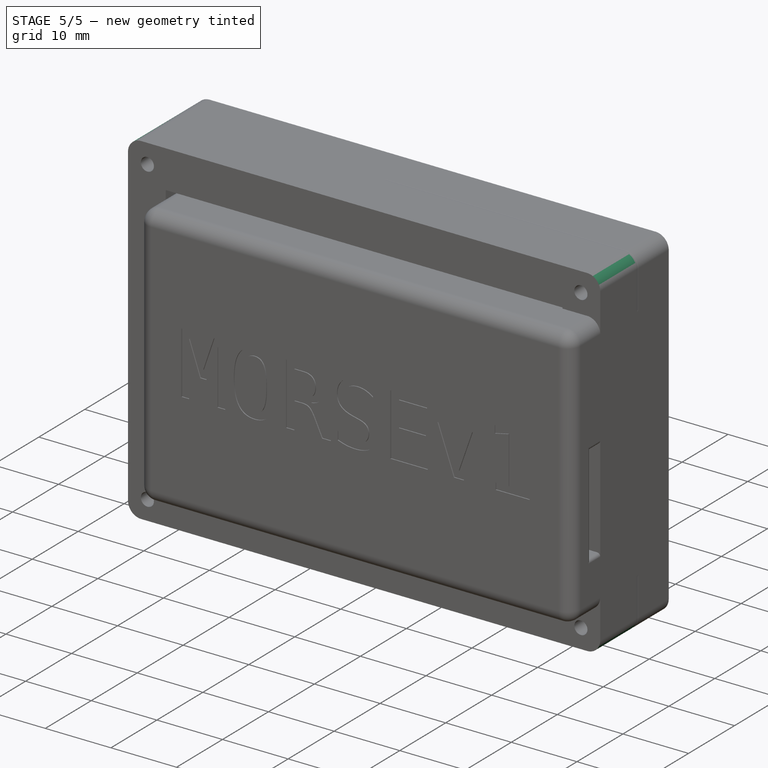
[diagram: stage 5 of 5 — iso view after this stage's code; geometry added in this stage tinted green]
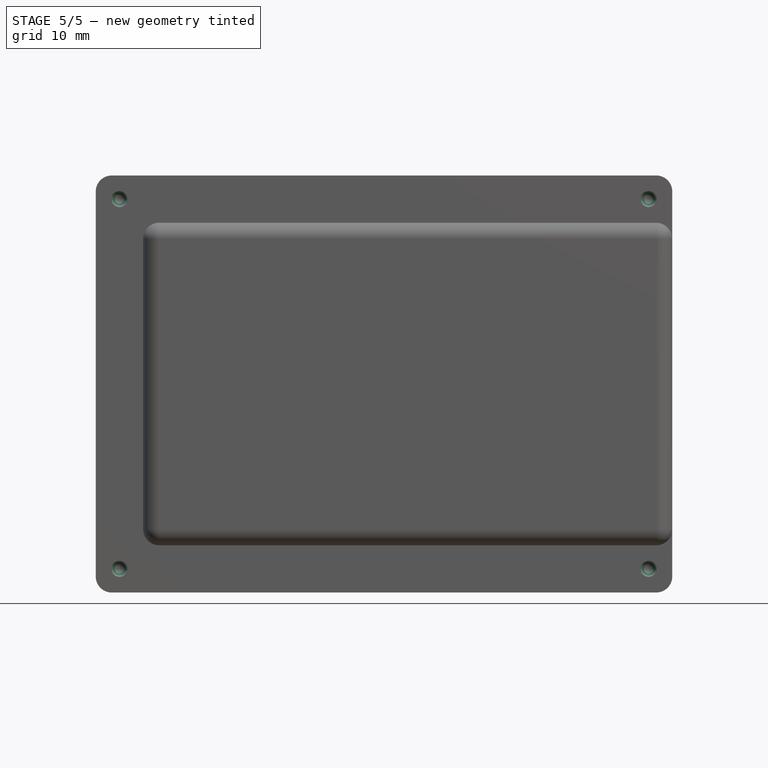
[diagram: stage 5 of 5 — front view after this stage's code; geometry added in this stage tinted green]
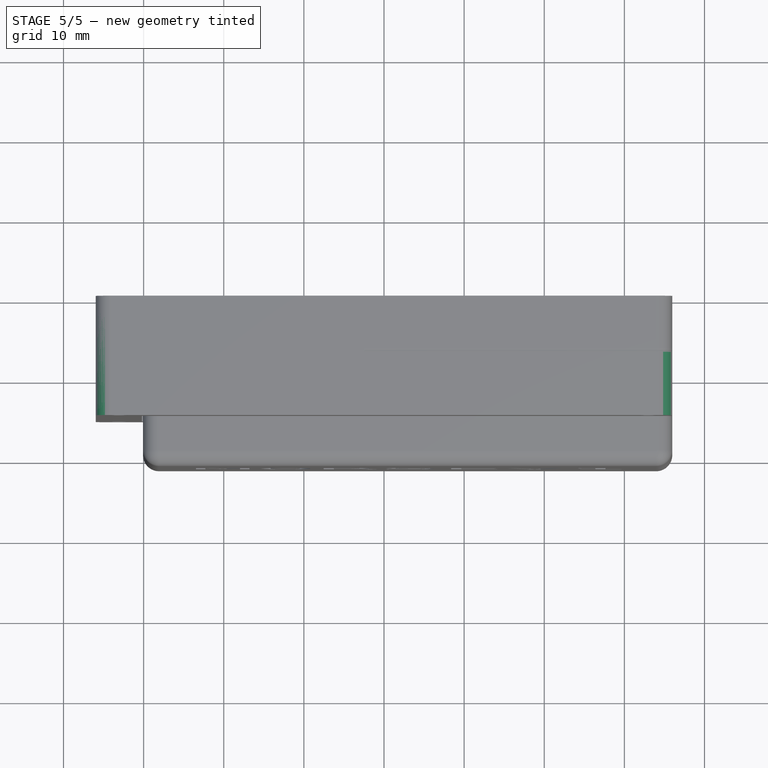
[diagram: stage 5 of 5 — top view after this stage's code; geometry added in this stage tinted green]
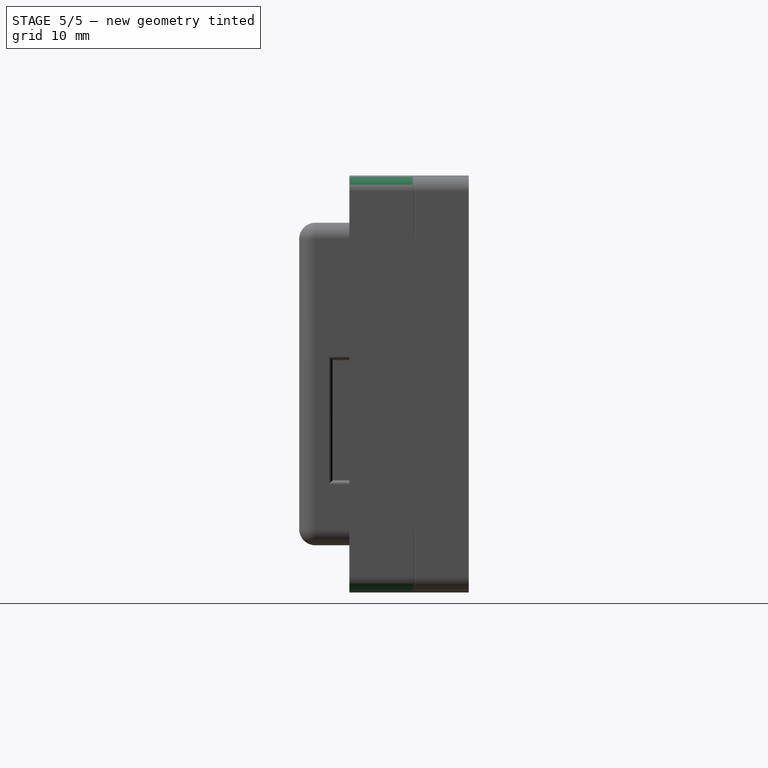
[diagram: stage 5 of 5 — right view after this stage's code; geometry added in this stage tinted green]
FEATURE [Sketcher::SketchObject] Sketch017
  ExternalGeometry = -> [Pocket013]
  FullyConstrained = true
  MapMode = 5
  Placement = pos=(0,5.8e-15,-26.025) rot=(1,0,0;3.14159rad)
  Support = -> [Pocket013]
  expr: Constraints[2] = Spreadsheet.caseThickness
  expr: Constraints[3] = Spreadsheet.caseThickness
  sketch-geometry (4):
    g0: LineSegment StartX=-0.575 StartY=5 StartZ=0 EndX=-0.575 EndY=0 EndZ=0
    g1: LineSegment StartX=-0.575 StartY=5 StartZ=0 EndX=35.975 EndY=5 EndZ=0
    g2: LineSegment StartX=-0.575 StartY=0 StartZ=0 EndX=35.975 EndY=0 EndZ=0
    g3: LineSegment StartX=35.975 StartY=5 StartZ=0 EndX=35.975 EndY=0 EndZ=0
  constraints (12):
    c: Parallel(g0,g-4)
    c: Parallel(g-3,g1)
    c: Distance(g1,g-3) = 2
    c: Distance(g0,g-4) = 2
    c: PointOnObject(g1,g0)
    c: PointOnObject(g0,g1)
    c: PointOnObject(g0,g-6)
    c: PointOnObject(g1,g-5)
    c: Coincident(g2,g0)
    c: Coincident(g2,g-6)
    c: Coincident(g3,g1)
    c: Coincident(g3,g2)
FEATURE [PartDesign::Pocket] Pocket014  label="Display pit"
  BaseFeature = -> Pocket013
  Length = 5
  Length2 = 100
  Placement = pos=(0,0,0) rot=(1,0,0;1.5708rad)
  Profile = -> Sketch017
  Type = 1
FEATURE [PartDesign::Fillet] Fillet  label="Screw Holes Fillet"
  Base = -> Pocket014 [Edge50,Edge62,Edge46,Edge48]
  BaseFeature = -> Pocket014
  Placement = pos=(0,0,0) rot=(1,0,0;1.5708rad)
  Radius = 1
  SupportTransform = false
FEATURE [PartDesign::Fillet] Fillet001  label="Outer Case Fillet"
  Base = -> Fillet [Edge25,Edge26,Edge24,Edge20,Edge19,Edge18,Edge17,Edge21,Edge23,Edge22,Edge28,Edge27,Edge45]
  BaseFeature = -> Fillet
  Placement = pos=(0,0,0) rot=(1,0,0;1.5708rad)
  Radius = 2
  SupportTransform = false
  expr: Radius = Spreadsheet.caseThickness
FEATURE [PartDesign::Fillet] Fillet002  label="Inner Case Fillet"
  Base = -> Fillet001 [Edge118,Edge123,Edge120,Edge121,Edge122,Edge119,Edge106,Edge107,Edge112,Edge111,Edge110,Edge109]
  BaseFeature = -> Fillet001
  Placement = pos=(0,0,0) rot=(1,0,0;1.5708rad)
  Radius = 0.5
  SupportTransform = false
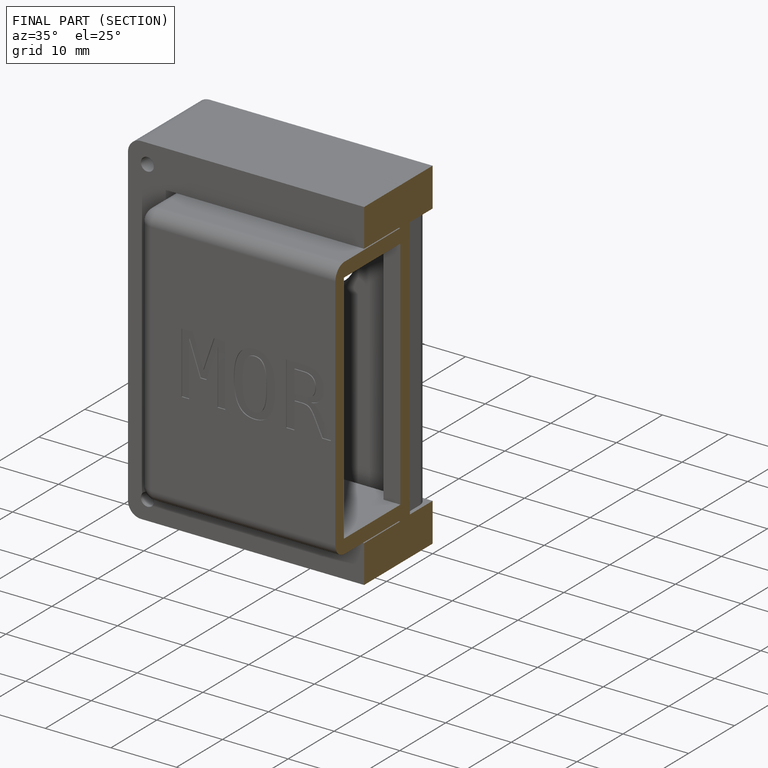
[diagram: finished part — half-section view (interior)]
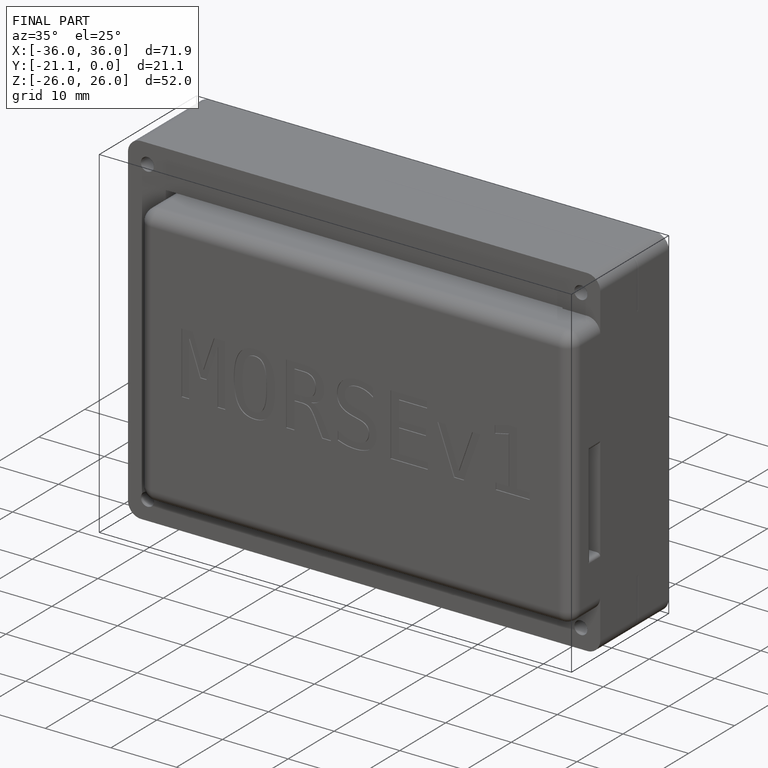
[diagram: finished part — iso view with bounding-box wireframe]
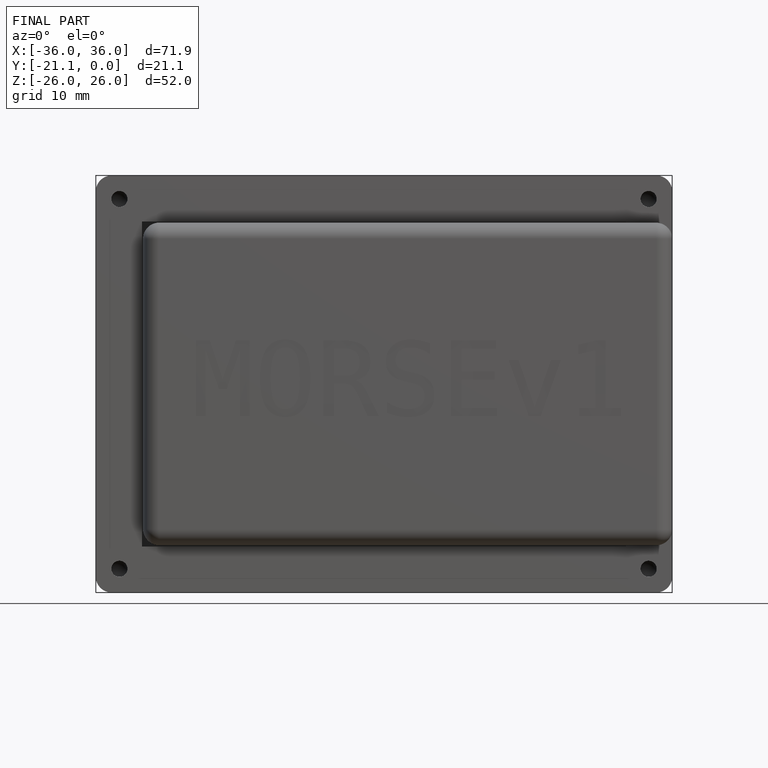
[diagram: finished part — front view with bounding-box wireframe]
